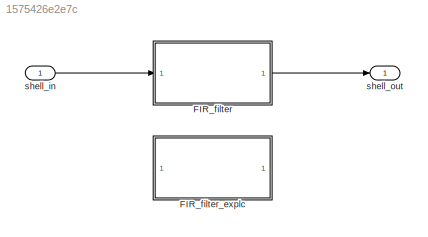
MODEL slx_1575426e2e7c
KIND model
CONFIG AbsTol = auto
CONFIG EnableMultiTasking = off
CONFIG FixedStep = auto
CONFIG MaxStep = auto
CONFIG MinStep = auto
CONFIG RelTol = 1e-3
CONFIG SampleTimeConstraint = Unconstrained
CONFIG SolverName = FixedStepDiscrete
CONFIG StartTime = 0.0
CONFIG StopTime = 10.0
WORKSPACE source: external: MATLAB File  (data not in archive)
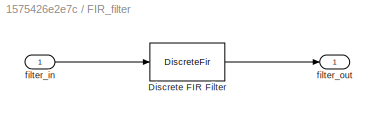
BLOCK [SubSystem] FIR_filter
  Ports = [1, 1]
  RequestExecContextInheritance = off
BLOCK [DiscreteFir] FIR_filter/Discrete FIR Filter
  Coefficients = b
  InputPortMap = u0
  OutDataTypeStr = fixdt(1,24)
  OutMax = [1]
  OutMin = [-1]
  OutputPortMap = o0
  Ports = [1, 1]
BLOCK [Inport] FIR_filter/filter_in
BLOCK [Outport] FIR_filter/filter_out
  OutDataTypeStr = fixdt(1,24)
  OutMax = [1]
  OutMin = [-1]
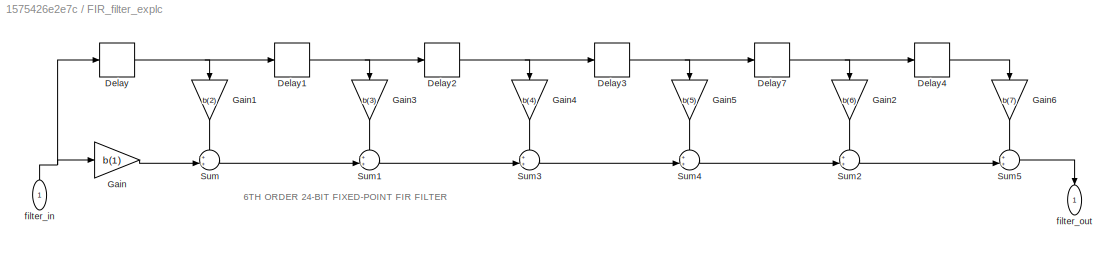
BLOCK [SubSystem] FIR_filter_explc
  Commented = on
  Ports = [1, 1]
  RequestExecContextInheritance = off
BLOCK [Delay] FIR_filter_explc/Delay
  DelayLength = 1
  InputPortMap = u0
  Ports = [1, 1]
BLOCK [Delay] FIR_filter_explc/Delay1
  DelayLength = 1
  InputPortMap = u0
  Ports = [1, 1]
BLOCK [Delay] FIR_filter_explc/Delay2
  DelayLength = 1
  InputPortMap = u0
  Ports = [1, 1]
BLOCK [Delay] FIR_filter_explc/Delay3
  DelayLength = 1
  InputPortMap = u0
  Ports = [1, 1]
BLOCK [Delay] FIR_filter_explc/Delay4
  DelayLength = 1
  InputPortMap = u0
  Ports = [1, 1]
BLOCK [Delay] FIR_filter_explc/Delay7
  DelayLength = 1
  InputPortMap = u0
  Ports = [1, 1]
BLOCK [Gain] FIR_filter_explc/Gain
  Gain = b(1)
  OutDataTypeStr = fixdt(1,24)
  OutMax = [1]
  OutMin = [-1]
BLOCK [Gain] FIR_filter_explc/Gain1
  Gain = b(2)
  NameLocation = left
  OutDataTypeStr = fixdt(1,24)
  OutMax = [1]
  OutMin = [-1]
BLOCK [Gain] FIR_filter_explc/Gain2
  Gain = b(6)
  NameLocation = left
  OutDataTypeStr = fixdt(1,24)
  OutMax = [1]
  OutMin = [-1]
BLOCK [Gain] FIR_filter_explc/Gain3
  Gain = b(3)
  NameLocation = left
  OutDataTypeStr = fixdt(1,24)
  OutMax = [1]
  OutMin = [-1]
BLOCK [Gain] FIR_filter_explc/Gain4
  Gain = b(4)
  NameLocation = left
  OutDataTypeStr = fixdt(1,24)
  OutMax = [1]
  OutMin = [-1]
BLOCK [Gain] FIR_filter_explc/Gain5
  Gain = b(5)
  NameLocation = left
  OutDataTypeStr = fixdt(1,24)
  OutMax = [1]
  OutMin = [-1]
BLOCK [Gain] FIR_filter_explc/Gain6
  Gain = b(7)
  NameLocation = left
  OutDataTypeStr = fixdt(1,24)
  OutMax = [1]
  OutMin = [-1]
BLOCK [Sum] FIR_filter_explc/Sum
  Inputs = ++|
  OutDataTypeStr = Inherit: Inherit via back propagation
  OutMax = [1]
  OutMin = [-1]
  Ports = [2, 1]
BLOCK [Sum] FIR_filter_explc/Sum1
  Inputs = ++|
  OutDataTypeStr = Inherit: Inherit via back propagation
  OutMax = [1]
  OutMin = [-1]
  Ports = [2, 1]
BLOCK [Sum] FIR_filter_explc/Sum2
  Inputs = ++|
  OutDataTypeStr = Inherit: Inherit via back propagation
  OutMax = [1]
  OutMin = [-1]
  Ports = [2, 1]
BLOCK [Sum] FIR_filter_explc/Sum3
  Inputs = ++|
  OutDataTypeStr = Inherit: Inherit via back propagation
  OutMax = [1]
  OutMin = [-1]
  Ports = [2, 1]
BLOCK [Sum] FIR_filter_explc/Sum4
  Inputs = ++|
  OutDataTypeStr = Inherit: Inherit via back propagation
  OutMax = [1]
  OutMin = [-1]
  Ports = [2, 1]
BLOCK [Sum] FIR_filter_explc/Sum5
  Inputs = ++|
  OutDataTypeStr = Inherit: Inherit via back propagation
  OutMax = [1]
  OutMin = [-1]
  Ports = [2, 1]
BLOCK [Inport] FIR_filter_explc/filter_in
  NameLocation = right
BLOCK [Outport] FIR_filter_explc/filter_out
  NameLocation = right
  OutDataTypeStr = fixdt(1,24)
  OutMax = [1]
  OutMin = [-1]
BLOCK [Inport] shell_in
  OutDataTypeStr = fixdt(1,24)
  OutMax = [1]
  OutMin = [-1]
BLOCK [Outport] shell_out
ANNOTATION FIR_filter_explc: 6TH ORDER 24-BIT FIXED-POINT FIR FILTER
LINE FIR_filter/Discrete FIR Filter:1 -> FIR_filter/filter_out:1
LINE FIR_filter/filter_in:1 -> FIR_filter/Discrete FIR Filter:1
LINE FIR_filter:1 -> shell_out:1
NET FIR_filter_explc/Delay1:1 -> FIR_filter_explc/Delay2:1, FIR_filter_explc/Gain3:1
NET FIR_filter_explc/Delay2:1 -> FIR_filter_explc/Delay3:1, FIR_filter_explc/Gain4:1
NET FIR_filter_explc/Delay3:1 -> FIR_filter_explc/Delay7:1, FIR_filter_explc/Gain5:1
LINE FIR_filter_explc/Delay4:1 -> FIR_filter_explc/Gain6:1
NET FIR_filter_explc/Delay7:1 -> FIR_filter_explc/Delay4:1, FIR_filter_explc/Gain2:1
NET FIR_filter_explc/Delay:1 -> FIR_filter_explc/Delay1:1, FIR_filter_explc/Gain1:1
LINE FIR_filter_explc/Gain1:1 -> FIR_filter_explc/Sum:1
LINE FIR_filter_explc/Gain2:1 -> FIR_filter_explc/Sum2:1
LINE FIR_filter_explc/Gain3:1 -> FIR_filter_explc/Sum1:1
LINE FIR_filter_explc/Gain4:1 -> FIR_filter_explc/Sum3:1
LINE FIR_filter_explc/Gain5:1 -> FIR_filter_explc/Sum4:1
LINE FIR_filter_explc/Gain6:1 -> FIR_filter_explc/Sum5:1
LINE FIR_filter_explc/Gain:1 -> FIR_filter_explc/Sum:2
LINE FIR_filter_explc/Sum1:1 -> FIR_filter_explc/Sum3:2
LINE FIR_filter_explc/Sum2:1 -> FIR_filter_explc/Sum5:2
LINE FIR_filter_explc/Sum3:1 -> FIR_filter_explc/Sum4:2
LINE FIR_filter_explc/Sum4:1 -> FIR_filter_explc/Sum2:2
LINE FIR_filter_explc/Sum5:1 -> FIR_filter_explc/filter_out:1
LINE FIR_filter_explc/Sum:1 -> FIR_filter_explc/Sum1:2
NET FIR_filter_explc/filter_in:1 -> FIR_filter_explc/Delay:1, FIR_filter_explc/Gain:1
LINE shell_in:1 -> FIR_filter:1
note: NET lines group one-source signal fan-out (src -> all destinations, sorted); 1:1 wires keep LINE
